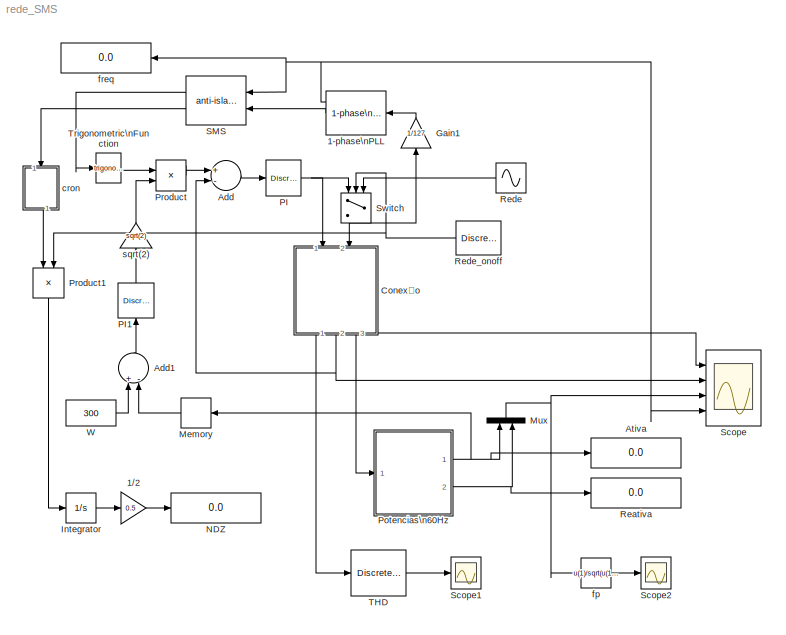
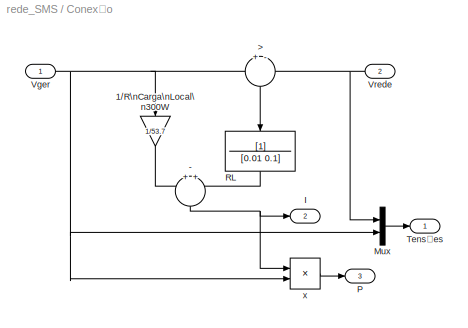
MODEL rede_SMS
KIND model
BLOCK [Reference] 1-phase\nPLL  REF=powerlib_extras/Control \nBlocks/1-phase\nPLL
  AGC = off
  ParK = [ 180 3200 1 ]
  Par_Init = [0 60]
  Ports = [1, 3]
  SID = 71
  SourceBlock = powerlib_extras/Control \nBlocks/1-phase\nPLL
  SourceType = 1-phase PLL
BLOCK [Gain] 1//2
  Gain = 0.5
  OutDataTypeStr = Inherit: Inherit via internal rule
  ParamDataTypeStr = Inherit: Inherit via internal rule
  SID = 2
  SaturateOnIntegerOverflow = off
BLOCK [Sum] Add
  InputSameDT = off
  Inputs = +-
  OutDataTypeStr = Inherit: Inherit via internal rule
  Ports = [2, 1]
  SID = 3
  SaturateOnIntegerOverflow = off
BLOCK [Sum] Add1
  InputSameDT = off
  Inputs = +-
  OutDataTypeStr = Inherit: Inherit via internal rule
  Ports = [2, 1]
  SID = 4
  SaturateOnIntegerOverflow = off
BLOCK [Display] Ativa
  Decimation = 1
  Ports = [1]
  SID = 5
BLOCK [SubSystem] Conexão
  Ports = [2, 3]
  RequestExecContextInheritance = off
  SID = 6
BLOCK [Sum] Conexão/-
  IconShape = round
  InputSameDT = off
  Inputs = 2
  OutDataTypeStr = Inherit: Inherit via internal rule
  Ports = [2, 1]
  SID = 11
  SaturateOnIntegerOverflow = off
BLOCK [Gain] Conexão/1//R\nCarga\nLocal\n300W
  Gain = 1/53.7
  OutDataTypeStr = Inherit: Inherit via internal rule
  ParamDataTypeStr = Inherit: Inherit via internal rule
  SID = 72
  SaturateOnIntegerOverflow = off
BLOCK [Sum] Conexão/>
  IconShape = round
  InputSameDT = off
  Inputs = +-
  OutDataTypeStr = Inherit: Inherit via internal rule
  Ports = [2, 1]
  SID = 10
  SaturateOnIntegerOverflow = off
BLOCK [Outport] Conexão/I
  IconDisplay = Port number
  Port = 2
  SID = 16
BLOCK [Mux] Conexão/Mux
  DisplayOption = bar
  Inputs = 2
  Ports = [2, 1]
  SID = 12
BLOCK [Outport] Conexão/P
  IconDisplay = Port number
  Port = 3
  SID = 17
BLOCK [TransferFcn] Conexão/RL
  Denominator = [0.01 0.1]
  SID = 14
BLOCK [Outport] Conexão/Tensões
  IconDisplay = Port number
  SID = 15
BLOCK [Inport] Conexão/Vger
  IconDisplay = Port number
  SID = 7
BLOCK [Inport] Conexão/Vrede
  IconDisplay = Port number
  Port = 2
  SID = 8
BLOCK [Product] Conexão/x
  InputSameDT = off
  OutDataTypeStr = Inherit: Inherit via internal rule
  Ports = [2, 1]
  SID = 13
  SaturateOnIntegerOverflow = off
BLOCK [Gain] Gain1
  Gain = 1/127
  OutDataTypeStr = Inherit: Inherit via internal rule
  ParamDataTypeStr = Inherit: Inherit via internal rule
  SID = 18
  SaturateOnIntegerOverflow = off
BLOCK [Integrator] Integrator
  Ports = [1, 1]
  SID = 19
BLOCK [Memory] Memory
  SID = 20
BLOCK [Mux] Mux
  DisplayOption = bar
  Inputs = 2
  Ports = [2, 1]
  SID = 21
BLOCK [Display] NDZ
  Decimation = 1
  Ports = [1]
  SID = 22
BLOCK [Reference] PI  REF=powerlib_extras/Discrete \nControl Blocks/Discrete\nPI Controller
  Init = 0
  Ki = 20
  Kp = 10
  Par_Limits = [1e3 -1e3]
  Ports = [1, 1]
  SID = 23
  SourceBlock = powerlib_extras/Discrete \nControl Blocks/Discrete\nPI Controller
  SourceType = Discrete PI Controller
  Ts = 1e-3
BLOCK [Reference] PI1  REF=powerlib_extras/Discrete \nControl Blocks/Discrete\nPI Controller
  Init = 0
  Ki = 0.05
  Kp = 0.01
  Par_Limits = [10 0]
  Ports = [1, 1]
  SID = 24
  SourceBlock = powerlib_extras/Discrete \nControl Blocks/Discrete\nPI Controller
  SourceType = Discrete PI Controller
  Ts = 1e-3
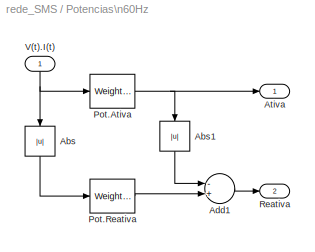
BLOCK [SubSystem] Potencias\n60Hz
  Ports = [1, 2]
  RequestExecContextInheritance = off
  SID = 25
BLOCK [Abs] Potencias\n60Hz/Abs
  SID = 27
  SaturateOnIntegerOverflow = off
BLOCK [Abs] Potencias\n60Hz/Abs1
  SID = 28
  SaturateOnIntegerOverflow = off
BLOCK [Sum] Potencias\n60Hz/Add1
  InputSameDT = off
  Inputs = -+
  OutDataTypeStr = Inherit: Inherit via internal rule
  Ports = [2, 1]
  SID = 29
  SaturateOnIntegerOverflow = off
BLOCK [Outport] Potencias\n60Hz/Ativa
  IconDisplay = Port number
  SID = 32
BLOCK [Reference] Potencias\n60Hz/Pot.Ativa  REF=simulink_need_slupdate/Weighted\nMoving Average
  DoSatur = off
  GainDataType = sfix( 16 )
  GainDataTypeScalingMode = Inherit via internal rule
  GainDataTypeStr = Inherit: Inherit via internal rule
  GainScaling = 2^-10
  LockScale = off
  MatRadixGroup = Best Precision: Matrix-wise
  OutDataType = sfix(16)
  OutDataTypeStr = Inherit: Inherit via internal rule
  OutScaling = 2^-10
  OutputDataTypeScalingMode = Inherit via internal rule
  Ports = [1, 1]
  RndMeth = Floor
  SID = 30
  SourceBlock = simulink_need_slupdate/Weighted\nMoving Average
  SourceType = Weighted Moving Average
  mgainval = [ones(1,16)]./16
  samptime = -1
  vinit = 0.0
BLOCK [Reference] Potencias\n60Hz/Pot.Reativa  REF=simulink_need_slupdate/Weighted\nMoving Average
  DoSatur = off
  GainDataType = sfix( 16 )
  GainDataTypeScalingMode = Inherit via internal rule
  GainDataTypeStr = Inherit: Inherit via internal rule
  GainScaling = 2^-10
  LockScale = off
  MatRadixGroup = Best Precision: Matrix-wise
  OutDataType = sfix(16)
  OutDataTypeStr = Inherit: Inherit via internal rule
  OutScaling = 2^-10
  OutputDataTypeScalingMode = Inherit via internal rule
  Ports = [1, 1]
  RndMeth = Floor
  SID = 31
  SourceBlock = simulink_need_slupdate/Weighted\nMoving Average
  SourceType = Weighted Moving Average
  mgainval = [ones(1,16)]./16
  samptime = -1
  vinit = 0.0
BLOCK [Outport] Potencias\n60Hz/Reativa
  IconDisplay = Port number
  Port = 2
  SID = 33
BLOCK [Inport] Potencias\n60Hz/V(t).I(t)
  IconDisplay = Port number
  SID = 26
BLOCK [Product] Product
  InputSameDT = off
  OutDataTypeStr = Inherit: Inherit via internal rule
  Ports = [2, 1]
  SID = 34
  SaturateOnIntegerOverflow = off
BLOCK [Product] Product1
  InputSameDT = off
  OutDataTypeStr = Inherit: Inherit via internal rule
  Ports = [2, 1]
  SID = 35
  SaturateOnIntegerOverflow = off
BLOCK [Display] Reativa
  Decimation = 1
  Ports = [1]
  SID = 36
BLOCK [Sin] Rede
  Amplitude = 127*sqrt(2)
  Frequency = 60*2*pi
  Ports = [0, 1]
  SID = 37
  SampleTime = 0
BLOCK [DiscretePulseGenerator] Rede_onoff
  Amplitude = 2
  PhaseDelay = -1
  Ports = [0, 1]
  PulseType = Time based
  PulseWidth = 50
  SID = 38
BLOCK [Reference] SMS  REF=AvgModels/Anti-Ilhamento/anti-islanding\nSMS
  Ports = [2, 2]
  SID = 73
  SourceBlock = AvgModels/Anti-Ilhamento/anti-islanding\nSMS
  SourceType = Anti-Ilhamento SMS
  angmax = 10
  fmax = 63
  fnom = 60
BLOCK [Scope] Scope
  DataFormat = StructureWithTime
  Floating = off
  NumInputPorts = 4
  Ports = [4]
  SID = 55
  SampleTime = 0
  SaveName = dados
  SaveToWorkspace = on
  TimeRange = 3
  YMax = 500~50~5000~70
  YMin = -500~-50~-5000~50
  ZoomMode = xonly
BLOCK [Scope] Scope1
  DataFormat = StructureWithTime
  Floating = off
  NumInputPorts = 1
  Ports = [1]
  SID = 56
  SampleTime = 0
  TimeRange = 3
  YMax = 0.6751100907072167
  YMin = -0.3919229176860233
BLOCK [Scope] Scope2
  DataFormat = StructureWithTime
  Floating = off
  NumInputPorts = 1
  Ports = [1]
  SID = 57
  SampleTime = 0
  SaveName = ScopeData1
  TimeRange = 3
  YMax = 1
  YMin = 0.8797282547329597
  ZoomMode = yonly
BLOCK [Switch] Switch
  InputSameDT = off
  SID = 58
  SaturateOnIntegerOverflow = off
  Threshold = 1
BLOCK [Reference] THD  REF=powerlib_extras/Discrete\nMeasurements/Discrete\nTotal Harmonic\nDistortion
  Freq = 60
  Ports = [1, 1]
  SID = 59
  SourceBlock = powerlib_extras/Discrete\nMeasurements/Discrete\nTotal Harmonic\nDistortion
  SourceType = Discrete Total Harmonic Distortion
  Ts = 1e-3
BLOCK [Trigonometry] Trigonometric\nFunction
  Ports = [1, 1]
  SID = 60
BLOCK [Constant] W
  SID = 61
  Value = 300
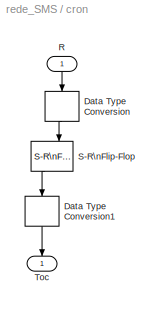
BLOCK [SubSystem] cron
  Ports = [1, 1]
  RequestExecContextInheritance = off
  SID = 62
BLOCK [DataTypeConversion] cron/Data Type Conversion
  RndMeth = Floor
  SID = 64
  SaturateOnIntegerOverflow = off
BLOCK [DataTypeConversion] cron/Data Type Conversion1
  RndMeth = Floor
  SID = 65
  SaturateOnIntegerOverflow = off
BLOCK [Inport] cron/R
  IconDisplay = Port number
  SID = 63
BLOCK [Reference] cron/S-R\nFlip-Flop  REF=simulink_extras/Flip Flops/S-R\nFlip-Flop
  Ports = [2, 2]
  SID = 66
  SourceBlock = simulink_extras/Flip Flops/S-R\nFlip-Flop
  SourceType = SRFlipFlop
  initial_condition = 1
BLOCK [Outport] cron/Toc
  IconDisplay = Port number
  SID = 67
BLOCK [Fcn] fp
  Expr = u(1)/sqrt(u(1)^2+u(2)^2)
  SID = 68
BLOCK [Display] freq
  Decimation = 1
  Ports = [1]
  SID = 69
BLOCK [Gain] sqrt(2)
  Gain = sqrt(2)
  OutDataTypeStr = Inherit: Inherit via internal rule
  ParamDataTypeStr = Inherit: Inherit via internal rule
  SID = 70
  SaturateOnIntegerOverflow = off
NET 1-phase\nPLL:1 -> SMS:1, Scope:4, freq:1
LINE 1-phase\nPLL:2 -> SMS:2
LINE 1//2:1 -> NDZ:1
LINE Add1:1 -> PI1:1
LINE Add:1 -> PI:1
NET Conexão/-:1 -> Conexão/I:1, Conexão/x:1
LINE Conexão/1//R\nCarga\nLocal\n300W:1 -> Conexão/-:1
LINE Conexão/>:1 -> Conexão/RL:1
LINE Conexão/Mux:1 -> Conexão/Tensões:1
LINE Conexão/RL:1 -> Conexão/-:2
NET Conexão/Vger:1 -> Conexão/1//R\nCarga\nLocal\n300W:1, Conexão/>:1, Conexão/Mux:2, Conexão/x:2
NET Conexão/Vrede:1 -> Conexão/>:2, Conexão/Mux:1
LINE Conexão/x:1 -> Conexão/P:1
NET Conexão:1 -> Scope:1, THD:1
NET Conexão:2 -> Add:2, Scope:2
LINE Conexão:3 -> Potencias\n60Hz:1
LINE Gain1:1 -> 1-phase\nPLL:1
LINE Integrator:1 -> 1//2:1
LINE Memory:1 -> Add1:2
NET Mux:1 -> Scope:3, fp:1
LINE PI1:1 -> sqrt(2):1
NET PI:1 -> Conexão:1, Switch:1
LINE Potencias\n60Hz/Abs1:1 -> Potencias\n60Hz/Add1:1
LINE Potencias\n60Hz/Abs:1 -> Potencias\n60Hz/Pot.Reativa:1
LINE Potencias\n60Hz/Add1:1 -> Potencias\n60Hz/Reativa:1
NET Potencias\n60Hz/Pot.Ativa:1 -> Potencias\n60Hz/Abs1:1, Potencias\n60Hz/Ativa:1
LINE Potencias\n60Hz/Pot.Reativa:1 -> Potencias\n60Hz/Add1:2
NET Potencias\n60Hz/V(t).I(t):1 -> Potencias\n60Hz/Abs:1, Potencias\n60Hz/Pot.Ativa:1
NET Potencias\n60Hz:1 -> Ativa:1, Memory:1, Mux:1
NET Potencias\n60Hz:2 -> Mux:2, Reativa:1
LINE Product1:1 -> Integrator:1
LINE Product:1 -> Add:1
LINE Rede:1 -> Switch:3
NET Rede_onoff:1 -> Product1:2, Switch:2
LINE SMS:1 -> Trigonometric\nFunction:1
LINE SMS:2 -> cron:1
NET Switch:1 -> Conexão:2, Gain1:1
LINE THD:1 -> Scope1:1
LINE Trigonometric\nFunction:1 -> Product:1
LINE W:1 -> Add1:1
LINE cron/Data Type Conversion1:1 -> cron/Toc:1
LINE cron/Data Type Conversion:1 -> cron/S-R\nFlip-Flop:2
LINE cron/R:1 -> cron/Data Type Conversion:1
LINE cron/S-R\nFlip-Flop:1 -> cron/Data Type Conversion1:1
LINE cron:1 -> Product1:1
LINE fp:1 -> Scope2:1
LINE sqrt(2):1 -> Product:2
note: NET lines group one-source signal fan-out (src -> all destinations, sorted); 1:1 wires keep LINE
